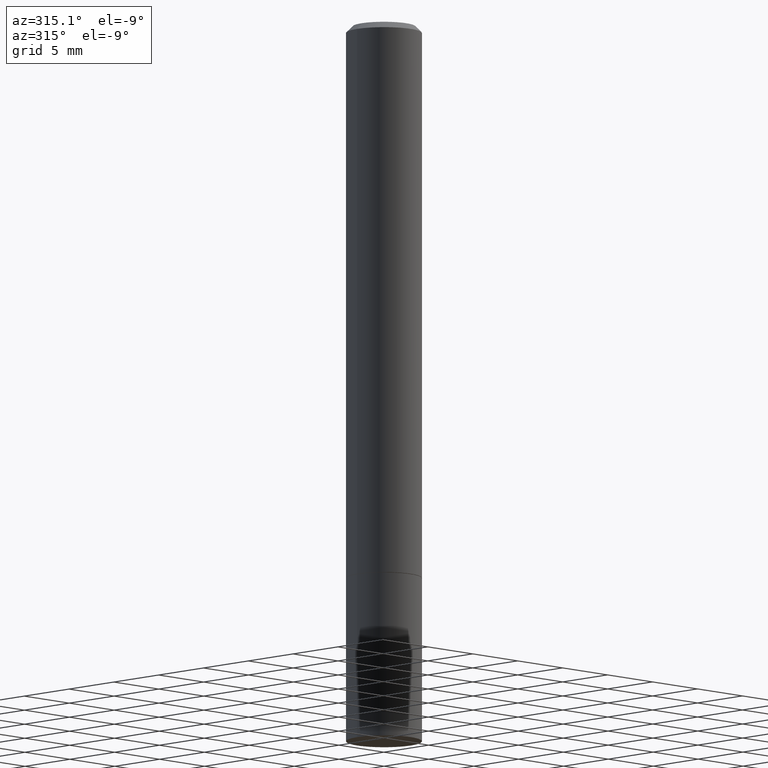
[diagram: clean part render]
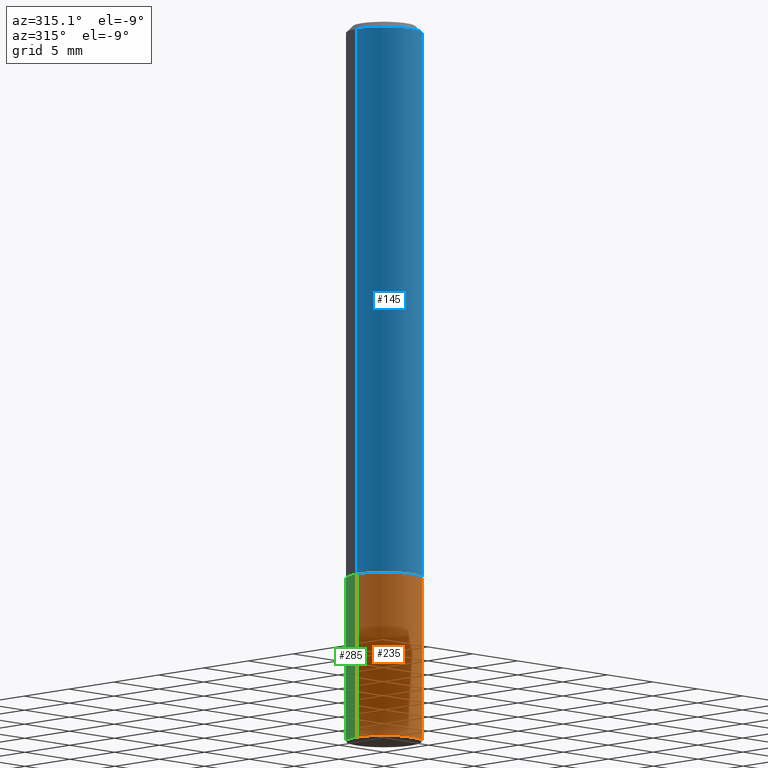
[diagram: same view with three faces highlighted in distinct colors, each labeled with its STEP entity id]
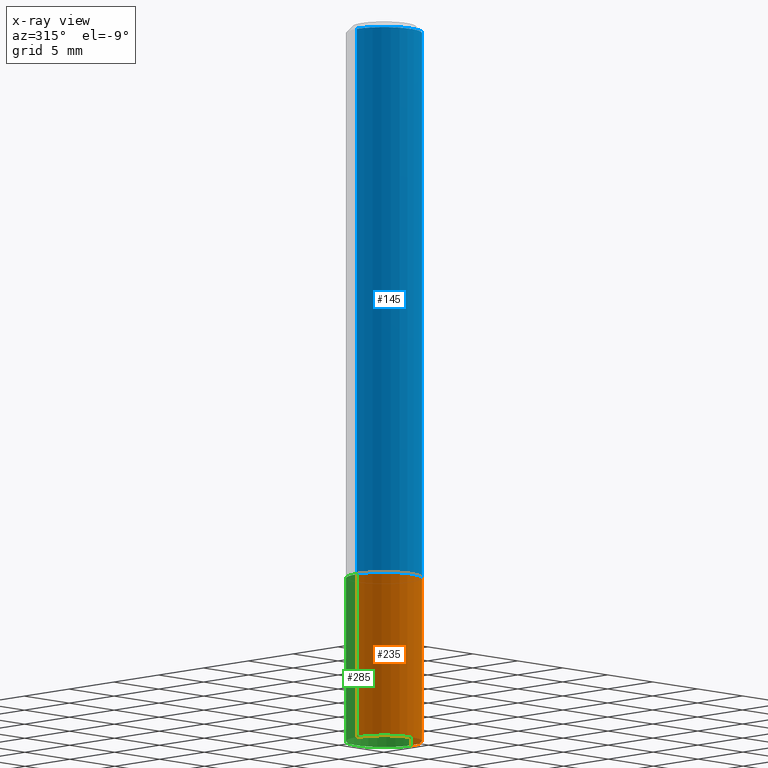
[diagram: x-ray of the same camera — body ghosted, the three highlighted faces saturated]
A machine part, auxiliary view with three faces highlighted in distinct colors.
The next image is the same camera in x-ray (body ghosted, the three faces saturated) — at least one of them is partly hidden behind the body in this view.
Their STEP definitions:

[orange] entity #235 — the highlighted cylindrical surface (partial cylindrical patch) has radius 2.9997 mm, axis along (-0, 0, 1).
#1 = CARTESIAN_POINT ( 'NONE',  ( -0.1180999999999999966, 8.391509709326782957E-16, -5.809262341591043784E-30 ) ) ;
#26 = CARTESIAN_POINT ( 'NONE',  ( 0.1180999999999999966, -6.872981015512729341E-15, -1.732299999999999951 ) ) ;
#29 = AXIS2_PLACEMENT_3D ( 'NONE', #268, #290, #40 ) ;
#31 = ORIENTED_EDGE ( 'NONE', *, *, #363, .F. ) ;
#32 = CARTESIAN_POINT ( 'NONE',  ( 0.1180999999999999966, -8.659921164732650602E-15, -2.244099999999999984 ) ) ;
#40 = DIRECTION ( 'NONE',  ( 1.000000000000000000, -6.982962677686266711E-15, 4.876176775795936353E-29 ) ) ;
#46 = CYLINDRICAL_SURFACE ( 'NONE', #29, 0.1180999999999999966 ) ;
#47 = VECTOR ( 'NONE', #55, 39.37007874015748143 ) ;
#50 = CARTESIAN_POINT ( 'NONE',  ( 5.487876547960064752E-29, -7.835233272497902340E-15, -2.244099999999999984 ) ) ;
#52 = VERTEX_POINT ( 'NONE', #32 ) ;
#55 = DIRECTION ( 'NONE',  ( -2.445468806185136877E-29, 3.491481338843145188E-15, 1.000000000000000000 ) ) ;
#59 = CARTESIAN_POINT ( 'NONE',  ( 4.236285612954512392E-29, -6.048293123277981078E-15, -1.732299999999999951 ) ) ;
#75 = AXIS2_PLACEMENT_3D ( 'NONE', #50, #165, #130 ) ;
#91 = EDGE_CURVE ( 'NONE', #52, #349, #154, .T. ) ;
#121 = DIRECTION ( 'NONE',  ( -2.445468806185136877E-29, 3.491481338843145188E-15, 1.000000000000000000 ) ) ;
#124 = ORIENTED_EDGE ( 'NONE', *, *, #308, .F. ) ;
#130 = DIRECTION ( 'NONE',  ( 1.000000000000000000, -6.982962677686265133E-15, 0.000000000000000000 ) ) ;
#135 = DIRECTION ( 'NONE',  ( -2.445468806185136597E-29, 3.491481338843145583E-15, 1.000000000000000000 ) ) ;
#139 = LINE ( 'NONE', #1, #47 ) ;
#149 = VERTEX_POINT ( 'NONE', #190 ) ;
#154 = LINE ( 'NONE', #204, #283 ) ;
#165 = DIRECTION ( 'NONE',  ( -2.445468806185136597E-29, 3.491481338843145583E-15, 1.000000000000000000 ) ) ;
#176 = VERTEX_POINT ( 'NONE', #327 ) ;
#189 = EDGE_LOOP ( 'NONE', ( #124, #306, #205, #31 ) ) ;
#190 = CARTESIAN_POINT ( 'NONE',  ( -0.1180999999999999966, -6.102612226955263117E-15, -1.732299999999999951 ) ) ;
#192 = DIRECTION ( 'NONE',  ( 1.000000000000000000, -6.982962677686265133E-15, 0.000000000000000000 ) ) ;
#194 = CIRCLE ( 'NONE', #252, 0.1180999999999999966 ) ;
#199 = EDGE_CURVE ( 'NONE', #176, #52, #223, .T. ) ;
#204 = CARTESIAN_POINT ( 'NONE',  ( 0.1180999999999999966, -8.246878922347480654E-16, 5.758764772215000440E-30 ) ) ;
#205 = ORIENTED_EDGE ( 'NONE', *, *, #91, .T. ) ;
#223 = CIRCLE ( 'NONE', #75, 0.1180999999999999966 ) ;
#235 = ADVANCED_FACE ( 'NONE', ( #294 ), #46, .T. ) ;
#252 = AXIS2_PLACEMENT_3D ( 'NONE', #59, #135, #192 ) ;
#268 = CARTESIAN_POINT ( 'NONE',  ( 0.000000000000000000, 0.000000000000000000, 0.000000000000000000 ) ) ;
#283 = VECTOR ( 'NONE', #121, 39.37007874015748143 ) ;
#290 = DIRECTION ( 'NONE',  ( -2.445468806185136597E-29, 3.491481338843145583E-15, 1.000000000000000000 ) ) ;
#294 = FACE_OUTER_BOUND ( 'NONE', #189, .T. ) ;
#306 = ORIENTED_EDGE ( 'NONE', *, *, #199, .T. ) ;
#308 = EDGE_CURVE ( 'NONE', #176, #149, #139, .T. ) ;
#327 = CARTESIAN_POINT ( 'NONE',  ( -0.1180999999999999966, -6.102612226955263117E-15, -2.244099999999999984 ) ) ;
#349 = VERTEX_POINT ( 'NONE', #26 ) ;
#363 = EDGE_CURVE ( 'NONE', #149, #349, #194, .T. ) ;

[blue] entity #145 — the highlighted cylindrical surface (partial cylindrical patch) has radius 2.9997 mm, axis along (-0, 0, 1).
#5 = ORIENTED_EDGE ( 'NONE', *, *, #261, .T. ) ;
#17 = CARTESIAN_POINT ( 'NONE',  ( 0.000000000000000000, 0.000000000000000000, 0.000000000000000000 ) ) ;
#25 = VECTOR ( 'NONE', #269, 39.37007874015748143 ) ;
#37 = CARTESIAN_POINT ( 'NONE',  ( 4.233840144148326789E-29, -6.044801641939137282E-15, -1.731299999999999839 ) ) ;
#57 = CARTESIAN_POINT ( 'NONE',  ( -0.1180999999999999273, 8.391509709326778027E-16, -5.809262341591040281E-30 ) ) ;
#62 = AXIS2_PLACEMENT_3D ( 'NONE', #243, #98, #156 ) ;
#76 = DIRECTION ( 'NONE',  ( 1.000000000000000000, -6.982962677686266711E-15, 4.876176775795935793E-29 ) ) ;
#80 = CIRCLE ( 'NONE', #62, 0.1180999999999998301 ) ;
#92 = VERTEX_POINT ( 'NONE', #314 ) ;
#98 = DIRECTION ( 'NONE',  ( -2.445468806185136597E-29, 3.491481338843145583E-15, 1.000000000000000000 ) ) ;
#117 = VECTOR ( 'NONE', #168, 39.37007874015748143 ) ;
#118 = EDGE_CURVE ( 'NONE', #155, #92, #222, .T. ) ;
#122 = ORIENTED_EDGE ( 'NONE', *, *, #118, .T. ) ;
#126 = AXIS2_PLACEMENT_3D ( 'NONE', #17, #211, #76 ) ;
#132 = LINE ( 'NONE', #265, #25 ) ;
#145 = ADVANCED_FACE ( 'NONE', ( #325 ), #331, .T. ) ;
#146 = DIRECTION ( 'NONE',  ( -2.445468806185136597E-29, 3.491481338843145583E-15, 1.000000000000000000 ) ) ;
#151 = ORIENTED_EDGE ( 'NONE', *, *, #333, .F. ) ;
#155 = VERTEX_POINT ( 'NONE', #267 ) ;
#156 = DIRECTION ( 'NONE',  ( 1.000000000000000000, -6.982962677686266711E-15, 0.000000000000000000 ) ) ;
#168 = DIRECTION ( 'NONE',  ( -2.445468806185136877E-29, 3.491481338843145188E-15, 1.000000000000000000 ) ) ;
#211 = DIRECTION ( 'NONE',  ( -2.445468806185136597E-29, 3.491481338843145583E-15, 1.000000000000000000 ) ) ;
#221 = CARTESIAN_POINT ( 'NONE',  ( -0.1180999999999998301, 7.548582654578837811E-16, -0.02000000000000004552 ) ) ;
#222 = CIRCLE ( 'NONE', #228, 0.1181000000000000383 ) ;
#228 = AXIS2_PLACEMENT_3D ( 'NONE', #37, #146, #317 ) ;
#243 = CARTESIAN_POINT ( 'NONE',  ( 4.890937612370284544E-31, -6.982962677686307633E-17, -0.02000000000000004552 ) ) ;
#248 = EDGE_CURVE ( 'NONE', #332, #286, #80, .T. ) ;
#259 = ORIENTED_EDGE ( 'NONE', *, *, #248, .F. ) ;
#261 = EDGE_CURVE ( 'NONE', #92, #286, #132, .T. ) ;
#265 = CARTESIAN_POINT ( 'NONE',  ( 0.1180999999999999273, -8.246878922347475723E-16, 5.758764772214996937E-30 ) ) ;
#267 = CARTESIAN_POINT ( 'NONE',  ( -0.1181000000000000383, -2.218164663425319332E-15, -1.731299999999999839 ) ) ;
#269 = DIRECTION ( 'NONE',  ( -2.445468806185136877E-29, 3.491481338843145188E-15, 1.000000000000000000 ) ) ;
#275 = CARTESIAN_POINT ( 'NONE',  ( 0.1180999999999998301, -8.800544403136797528E-16, -0.02000000000000004552 ) ) ;
#286 = VERTEX_POINT ( 'NONE', #275 ) ;
#305 = LINE ( 'NONE', #57, #117 ) ;
#309 = EDGE_LOOP ( 'NONE', ( #151, #122, #5, #259 ) ) ;
#314 = CARTESIAN_POINT ( 'NONE',  ( 0.1181000000000000383, -6.869489534173886334E-15, -1.731299999999999839 ) ) ;
#317 = DIRECTION ( 'NONE',  ( 1.000000000000000000, -6.982962677686270655E-15, 0.000000000000000000 ) ) ;
#325 = FACE_OUTER_BOUND ( 'NONE', #309, .T. ) ;
#331 = CYLINDRICAL_SURFACE ( 'NONE', #126, 0.1180999999999999273 ) ;
#332 = VERTEX_POINT ( 'NONE', #221 ) ;
#333 = EDGE_CURVE ( 'NONE', #155, #332, #305, .T. ) ;

[green] entity #285 — the highlighted cylindrical surface (partial cylindrical patch) has radius 2.9997 mm, axis along (-0, 0, 1).
#1 = CARTESIAN_POINT ( 'NONE',  ( -0.1180999999999999966, 8.391509709326782957E-16, -5.809262341591043784E-30 ) ) ;
#4 = EDGE_LOOP ( 'NONE', ( #19, #348, #112, #34 ) ) ;
#16 = FACE_OUTER_BOUND ( 'NONE', #4, .T. ) ;
#19 = ORIENTED_EDGE ( 'NONE', *, *, #66, .T. ) ;
#26 = CARTESIAN_POINT ( 'NONE',  ( 0.1180999999999999966, -6.872981015512729341E-15, -1.732299999999999951 ) ) ;
#28 = AXIS2_PLACEMENT_3D ( 'NONE', #173, #227, #347 ) ;
#32 = CARTESIAN_POINT ( 'NONE',  ( 0.1180999999999999966, -8.659921164732650602E-15, -2.244099999999999984 ) ) ;
#34 = ORIENTED_EDGE ( 'NONE', *, *, #91, .F. ) ;
#47 = VECTOR ( 'NONE', #55, 39.37007874015748143 ) ;
#52 = VERTEX_POINT ( 'NONE', #32 ) ;
#55 = DIRECTION ( 'NONE',  ( -2.445468806185136877E-29, 3.491481338843145188E-15, 1.000000000000000000 ) ) ;
#66 = EDGE_CURVE ( 'NONE', #52, #176, #288, .T. ) ;
#74 = CIRCLE ( 'NONE', #28, 0.1180999999999999966 ) ;
#85 = EDGE_CURVE ( 'NONE', #349, #149, #74, .T. ) ;
#91 = EDGE_CURVE ( 'NONE', #52, #349, #154, .T. ) ;
#104 = DIRECTION ( 'NONE',  ( 1.000000000000000000, -6.982962677686266711E-15, 4.876176775795936353E-29 ) ) ;
#107 = CARTESIAN_POINT ( 'NONE',  ( 0.000000000000000000, 0.000000000000000000, 0.000000000000000000 ) ) ;
#112 = ORIENTED_EDGE ( 'NONE', *, *, #85, .F. ) ;
#113 = DIRECTION ( 'NONE',  ( 1.000000000000000000, -6.982962677686265133E-15, 0.000000000000000000 ) ) ;
#121 = DIRECTION ( 'NONE',  ( -2.445468806185136877E-29, 3.491481338843145188E-15, 1.000000000000000000 ) ) ;
#139 = LINE ( 'NONE', #1, #47 ) ;
#147 = AXIS2_PLACEMENT_3D ( 'NONE', #150, #148, #113 ) ;
#148 = DIRECTION ( 'NONE',  ( -2.445468806185136597E-29, 3.491481338843145583E-15, 1.000000000000000000 ) ) ;
#149 = VERTEX_POINT ( 'NONE', #190 ) ;
#150 = CARTESIAN_POINT ( 'NONE',  ( 5.487876547960064752E-29, -7.835233272497902340E-15, -2.244099999999999984 ) ) ;
#154 = LINE ( 'NONE', #204, #283 ) ;
#162 = AXIS2_PLACEMENT_3D ( 'NONE', #107, #217, #104 ) ;
#173 = CARTESIAN_POINT ( 'NONE',  ( 4.236285612954512392E-29, -6.048293123277981078E-15, -1.732299999999999951 ) ) ;
#176 = VERTEX_POINT ( 'NONE', #327 ) ;
#190 = CARTESIAN_POINT ( 'NONE',  ( -0.1180999999999999966, -6.102612226955263117E-15, -1.732299999999999951 ) ) ;
#204 = CARTESIAN_POINT ( 'NONE',  ( 0.1180999999999999966, -8.246878922347480654E-16, 5.758764772215000440E-30 ) ) ;
#217 = DIRECTION ( 'NONE',  ( -2.445468806185136597E-29, 3.491481338843145583E-15, 1.000000000000000000 ) ) ;
#227 = DIRECTION ( 'NONE',  ( -2.445468806185136597E-29, 3.491481338843145583E-15, 1.000000000000000000 ) ) ;
#245 = CYLINDRICAL_SURFACE ( 'NONE', #162, 0.1180999999999999966 ) ;
#283 = VECTOR ( 'NONE', #121, 39.37007874015748143 ) ;
#285 = ADVANCED_FACE ( 'NONE', ( #16 ), #245, .T. ) ;
#288 = CIRCLE ( 'NONE', #147, 0.1180999999999999966 ) ;
#308 = EDGE_CURVE ( 'NONE', #176, #149, #139, .T. ) ;
#327 = CARTESIAN_POINT ( 'NONE',  ( -0.1180999999999999966, -6.102612226955263117E-15, -2.244099999999999984 ) ) ;
#347 = DIRECTION ( 'NONE',  ( 1.000000000000000000, -6.982962677686265133E-15, 0.000000000000000000 ) ) ;
#348 = ORIENTED_EDGE ( 'NONE', *, *, #308, .T. ) ;
#349 = VERTEX_POINT ( 'NONE', #26 ) ;